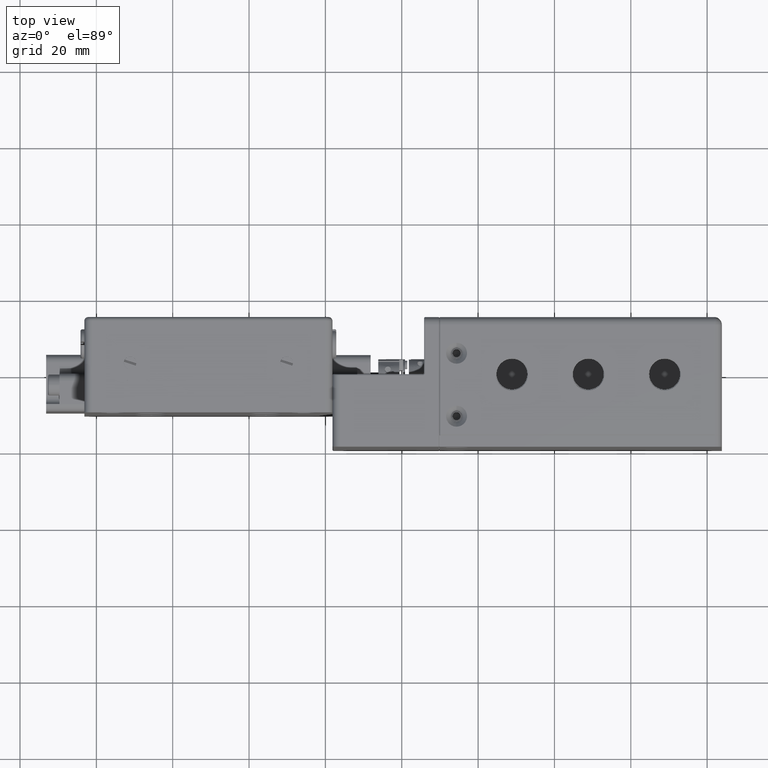
[diagram: clean part render]
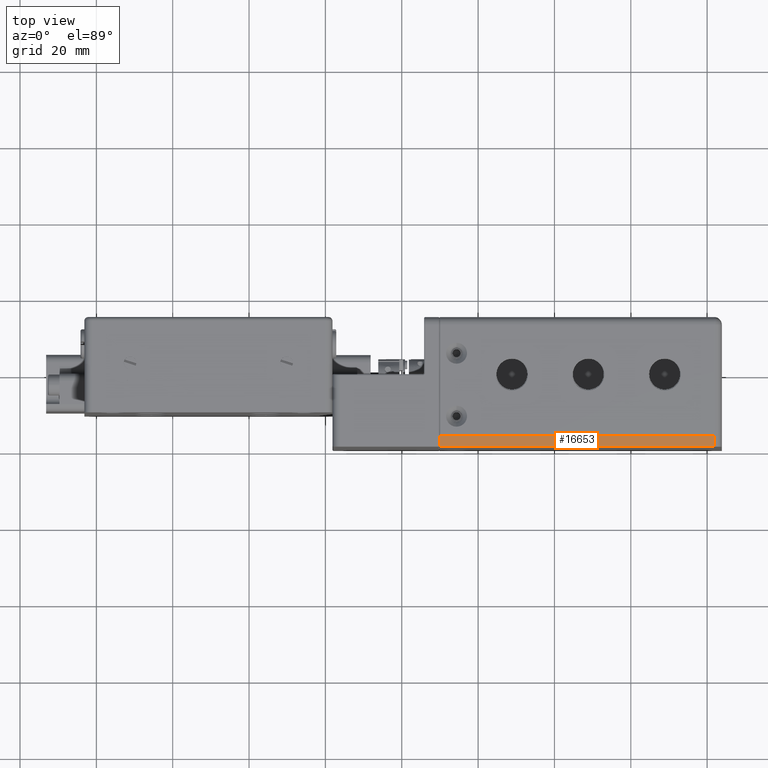
[diagram: same view with one face highlighted and labeled with its STEP entity id]
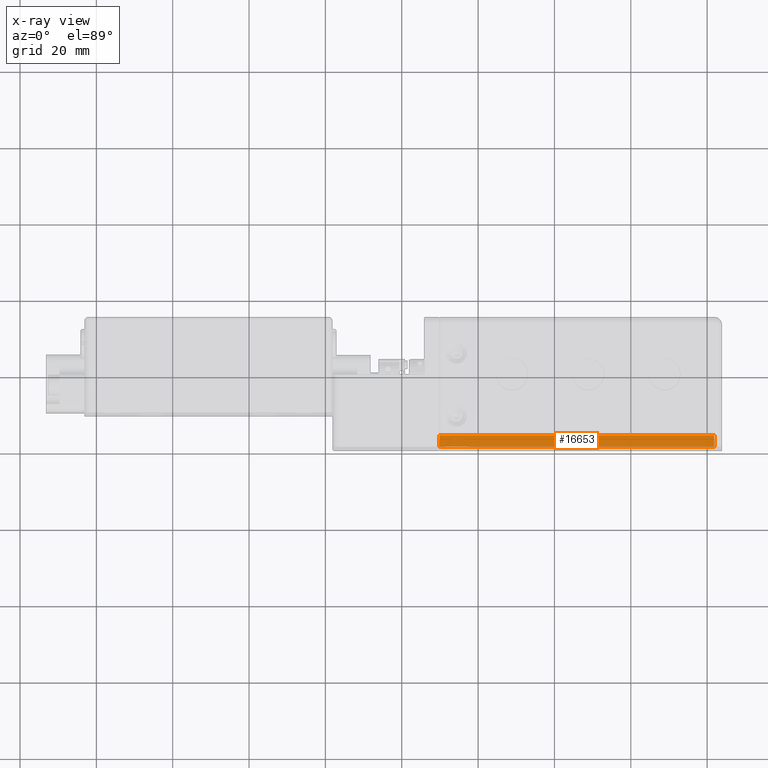
[diagram: x-ray of the same camera — body ghosted, the highlighted face saturated]
A machine part, top view. The second image highlights one B-rep face of the part: STEP entity #16653.
The next image is the same camera in x-ray: the body ghosted, the highlighted face saturated — about 0% of this face is hidden behind the body in this view.
In plain terms, the highlighted planar face has unit normal (-0, 0, -1).
Its self-contained STEP definition (entity closure, byte-faithful):
#2041 = CARTESIAN_POINT ( 'NONE',  ( -90.15206144933929977, 0.7416784770247970560, 32.50000000000000000 ) ) ;
#2971 = VERTEX_POINT ( 'NONE', #11457 ) ;
#5384 = CARTESIAN_POINT ( 'NONE',  ( -90.15206144933929977, 3.741678477024794613, 32.50000000000000000 ) ) ;
#6502 = LINE ( 'NONE', #2041, #49210 ) ;
#6756 = CARTESIAN_POINT ( 'NONE',  ( -90.15206144933929977, 0.7416784770247970560, 32.50000000000000000 ) ) ;
#7580 = VECTOR ( 'NONE', #42970, 1000.000000000000000 ) ;
#8086 = CARTESIAN_POINT ( 'NONE',  ( -90.15206144933929977, 0.7416784770247970560, 32.50000000000000000 ) ) ;
#10095 = DIRECTION ( 'NONE',  ( -1.000000000000000000, 0.000000000000000000, 1.110223024625155924E-16 ) ) ;
#10381 = PLANE ( 'NONE',  #12932 ) ;
#11232 = EDGE_LOOP ( 'NONE', ( #14633, #53937, #13680, #16231 ) ) ;
#11357 = VECTOR ( 'NONE', #47707, 1000.000000000000000 ) ;
#11457 = CARTESIAN_POINT ( 'NONE',  ( -18.15206144933934596, 3.741678477024794613, 32.50000000000000000 ) ) ;
#12932 = AXIS2_PLACEMENT_3D ( 'NONE', #6756, #53496, #10095 ) ;
#13680 = ORIENTED_EDGE ( 'NONE', *, *, #16587, .T. ) ;
#14633 = ORIENTED_EDGE ( 'NONE', *, *, #33678, .F. ) ;
#15205 = LINE ( 'NONE', #49151, #49442 ) ;
#15768 = CARTESIAN_POINT ( 'NONE',  ( -90.15206144933929977, 3.741678477024794613, 32.50000000000000000 ) ) ;
#16231 = ORIENTED_EDGE ( 'NONE', *, *, #44866, .F. ) ;
#16587 = EDGE_CURVE ( 'NONE', #2971, #54929, #25715, .T. ) ;
#16653 = ADVANCED_FACE ( 'NONE', ( #40159 ), #10381, .F. ) ;
#25715 = LINE ( 'NONE', #5384, #7580 ) ;
#27469 = DIRECTION ( 'NONE',  ( 0.000000000000000000, 1.000000000000000000, 0.000000000000000000 ) ) ;
#31571 = DIRECTION ( 'NONE',  ( -1.000000000000000000, 0.000000000000000000, 1.110223024625155924E-16 ) ) ;
#33678 = EDGE_CURVE ( 'NONE', #43704, #44159, #6502, .T. ) ;
#40159 = FACE_OUTER_BOUND ( 'NONE', #11232, .T. ) ;
#42970 = DIRECTION ( 'NONE',  ( -1.000000000000000000, 0.000000000000000000, 1.110223024625155924E-16 ) ) ;
#42986 = CARTESIAN_POINT ( 'NONE',  ( -18.15206144933934596, 0.7416784770247970560, 32.50000000000000000 ) ) ;
#43704 = VERTEX_POINT ( 'NONE', #53524 ) ;
#44159 = VERTEX_POINT ( 'NONE', #8086 ) ;
#44866 = EDGE_CURVE ( 'NONE', #44159, #54929, #15205, .T. ) ;
#47707 = DIRECTION ( 'NONE',  ( 0.000000000000000000, 1.000000000000000000, 0.000000000000000000 ) ) ;
#49151 = CARTESIAN_POINT ( 'NONE',  ( -90.15206144933929977, 0.7416784770247970560, 32.50000000000000000 ) ) ;
#49210 = VECTOR ( 'NONE', #31571, 1000.000000000000000 ) ;
#49442 = VECTOR ( 'NONE', #27469, 1000.000000000000000 ) ;
#50695 = EDGE_CURVE ( 'NONE', #43704, #2971, #51874, .T. ) ;
#51874 = LINE ( 'NONE', #42986, #11357 ) ;
#53496 = DIRECTION ( 'NONE',  ( -1.110223024625155924E-16, 0.000000000000000000, -1.000000000000000000 ) ) ;
#53524 = CARTESIAN_POINT ( 'NONE',  ( -18.15206144933934596, 0.7416784770247970560, 32.50000000000000000 ) ) ;
#53937 = ORIENTED_EDGE ( 'NONE', *, *, #50695, .T. ) ;
#54929 = VERTEX_POINT ( 'NONE', #15768 ) ;